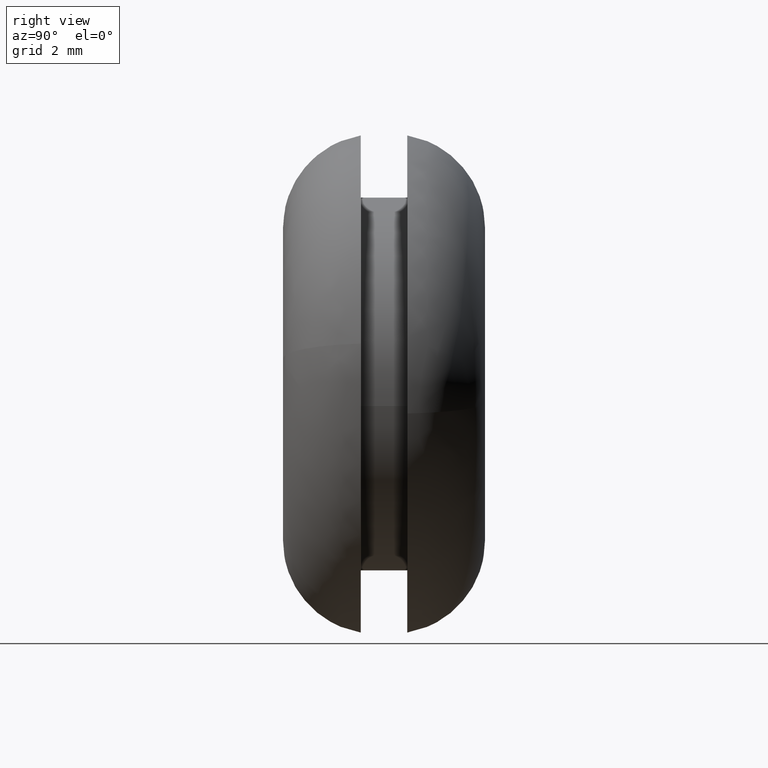
[diagram: clean part render]
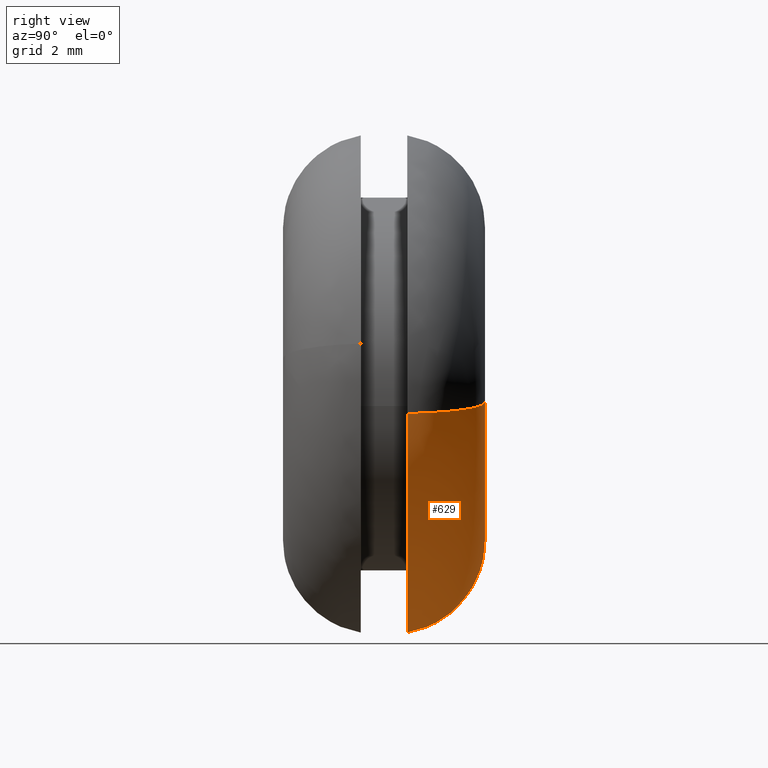
[diagram: same view with one face highlighted and labeled with its STEP entity id]
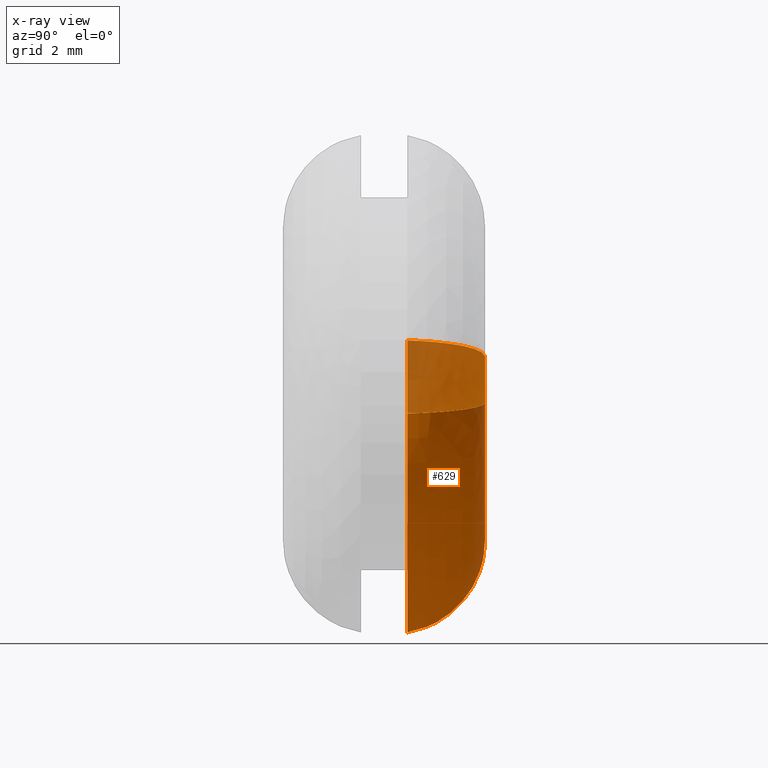
[diagram: x-ray of the same camera — body ghosted, the highlighted face saturated]
A machine part, right view. The second image highlights one B-rep face of the part: STEP entity #629.
The next image is the same camera in x-ray: the body ghosted, the highlighted face saturated — about 25% of this face is hidden behind the body in this view.
In plain terms, the highlighted face is a freeform B-spline surface patch.
Its self-contained STEP definition (entity closure, byte-faithful):
#439=CARTESIAN_POINT('',(7.943702172782295,4.000001249126272,-0.947412622172427));
#440=VERTEX_POINT('',#439);
#458=CARTESIAN_POINT('',(5.006478474712188,6.500000000000000,-0.597104617303462));
#459=VERTEX_POINT('',#458);
#460=CARTESIAN_POINT('',(5.006478474712188,6.500000000000000,-0.597104617303462));
#461=CARTESIAN_POINT('',(7.524097718139170,6.499999999972721,-0.897369945380144));
#462=CARTESIAN_POINT('',(7.943702172782297,4.000001249126272,-0.947412622172427));
#470=(BOUNDED_CURVE()B_SPLINE_CURVE(2,(#460,#461,#462),.UNSPECIFIED.,.F.,.U.)B_SPLINE_CURVE_WITH_KNOTS((3,3),(-1.711130095560332,-0.293356810133895),.UNSPECIFIED.)CURVE()GEOMETRIC_REPRESENTATION_ITEM()RATIONAL_B_SPLINE_CURVE((0.875824093680171,0.668421898418173,0.874515480675706))REPRESENTATION_ITEM(''));
#471=EDGE_CURVE('',#459,#440,#470,.T.);
#490=CARTESIAN_POINT('',(-4.964133992170910,6.500000000000000,0.882459262458416));
#491=VERTEX_POINT('',#490);
#505=CARTESIAN_POINT('',(-7.876514917801297,4.000000767646103,1.400181751897144));
#506=VERTEX_POINT('',#505);
#507=CARTESIAN_POINT('',(-4.964133992170910,6.500000000000000,0.882459262458416));
#508=CARTESIAN_POINT('',(-7.460459782287119,6.499999999911852,1.326222255441417));
#509=CARTESIAN_POINT('',(-7.876514917801297,4.000000767646104,1.400181751897144));
#517=(BOUNDED_CURVE()B_SPLINE_CURVE(2,(#507,#508,#509),.UNSPECIFIED.,.F.,.U.)B_SPLINE_CURVE_WITH_KNOTS((3,3),(-1.711130095533902,-0.293356631512929),.UNSPECIFIED.)CURVE()GEOMETRIC_REPRESENTATION_ITEM()RATIONAL_B_SPLINE_CURVE((0.895978410521985,0.683803484079920,0.894639737068132))REPRESENTATION_ITEM(''));
#518=EDGE_CURVE('',#491,#506,#517,.T.);
#536=CARTESIAN_POINT('',(-4.776222293862730,6.493922733300471,0.849054761482396));
#537=CARTESIAN_POINT('',(-5.625277055345126,6.493922733300472,-3.927167532380336));
#538=CARTESIAN_POINT('',(-0.849054761482396,6.493922733300471,-4.776222293862730));
#539=CARTESIAN_POINT('',(3.927167532380334,6.493922733300472,-5.625277055345126));
#540=CARTESIAN_POINT('',(4.776222293862730,6.493922733300471,-0.849054761482396));
#541=CARTESIAN_POINT('',(4.800521852909155,6.493922733300471,-0.712361463342321));
#542=CARTESIAN_POINT('',(4.816963842059988,6.493922733300469,-0.574502160721765));
#543=CARTESIAN_POINT('',(-7.608249808882023,6.677290290301738,1.352495828152605));
#544=CARTESIAN_POINT('',(-8.960745637034624,6.677290290301737,-6.255753980729417));
#545=CARTESIAN_POINT('',(-1.352495828152605,6.677290290301738,-7.608249808882023));
#546=CARTESIAN_POINT('',(6.255753980729415,6.677290290301737,-8.960745637034625));
#547=CARTESIAN_POINT('',(7.608249808882023,6.677290290301738,-1.352495828152606));
#548=CARTESIAN_POINT('',(7.646957621059949,6.677290290301739,-1.134751197466962));
#549=CARTESIAN_POINT('',(7.673148772375331,6.677290290301736,-0.915149188120954));
#550=CARTESIAN_POINT('',(-7.901963619517539,3.810504205938125,1.404708454385196));
#551=CARTESIAN_POINT('',(-9.306672073902735,3.810504205938126,-6.497255165132343));
#552=CARTESIAN_POINT('',(-1.404708454385197,3.810504205938125,-7.901963619517539));
#553=CARTESIAN_POINT('',(6.497255165132343,3.810504205938126,-9.306672073902739));
#554=CARTESIAN_POINT('',(7.901963619517538,3.810504205938125,-1.404708454385197));
#555=CARTESIAN_POINT('',(7.942165733184212,3.810504205938126,-1.178557868738737));
#556=CARTESIAN_POINT('',(7.969367984693595,3.810504205938126,-0.950478200981338));
#564=(BOUNDED_SURFACE()B_SPLINE_SURFACE(2,2,((#536,#543,#550),(#537,#544,#551),(#538,#545,#552),(#539,#546,#553),(#540,#547,#554),(#541,#548,#555),(#542,#549,#556)),.UNSPECIFIED.,.F.,.F.,.U.)B_SPLINE_SURFACE_WITH_KNOTS((3,2,2,3),(3,3),(0.0,13.297660237299061,26.595320474598129,27.127226376824609),(0.0,4.830461721013431),.UNSPECIFIED.)GEOMETRIC_REPRESENTATION_ITEM()RATIONAL_B_SPLINE_SURFACE(((0.918230120723227,0.661618598612188,0.916757797319628),(0.649286745053136,0.467834997637819,0.648245655190352),(0.918230120723227,0.661618598612188,0.916757797319628),(0.649286745053136,0.467834997637819,0.648245655190352),(0.918230120723227,0.661618598612188,0.916757797319628),(0.907472395955798,0.653867261965471,0.906017321877383),(0.897575288349015,0.646736031659112,0.896136083651083)))REPRESENTATION_ITEM('')SURFACE());
#565=CARTESIAN_POINT('',(0.0,3.999999988287755,-7.999999893529521));
#566=VERTEX_POINT('',#565);
#567=CARTESIAN_POINT('',(0.0,3.999999988287755,-7.999999893529521));
#568=CARTESIAN_POINT('',(7.102569261442119,4.000000618707014,-7.999999880909854));
#569=CARTESIAN_POINT('',(7.943702172782295,4.000001249126272,-0.947412622172427));
#577=(BOUNDED_CURVE()B_SPLINE_CURVE(2,(#567,#568,#569),.UNSPECIFIED.,.F.,.U.)B_SPLINE_CURVE_WITH_KNOTS((3,3),(0.0,0.229495701666636),.UNSPECIFIED.)CURVE()GEOMETRIC_REPRESENTATION_ITEM()RATIONAL_B_SPLINE_CURVE((1.0,0.731129060940029,0.955895920418741))REPRESENTATION_ITEM(''));
#578=EDGE_CURVE('',#566,#440,#577,.T.);
#579=ORIENTED_EDGE('',*,*,#578,.F.);
#580=CARTESIAN_POINT('',(-7.876514917801297,4.000000767646103,1.400181751897144));
#581=CARTESIAN_POINT('',(-7.999999893529521,3.999999988287756,0.705536075905622));
#582=CARTESIAN_POINT('',(-7.999999893529521,3.999999988287755,-3.061516E-016));
#583=CARTESIAN_POINT('',(-7.999999893529521,3.999999988287755,-7.999999893529521));
#584=CARTESIAN_POINT('',(0.0,3.999999988287755,-7.999999893529521));
#592=(BOUNDED_CURVE()B_SPLINE_CURVE(2,(#580,#581,#582,#583,#584),.UNSPECIFIED.,.F.,.U.)B_SPLINE_CURVE_WITH_KNOTS((3,2,3),(0.719918309591825,0.750000000000000,1.0),.UNSPECIFIED.)CURVE()GEOMETRIC_REPRESENTATION_ITEM()RATIONAL_B_SPLINE_CURVE((0.937995541207963,0.964757107476000,1.0,0.707106781186547,1.0))REPRESENTATION_ITEM(''));
#593=EDGE_CURVE('',#506,#566,#592,.T.);
#594=ORIENTED_EDGE('',*,*,#593,.F.);
#595=ORIENTED_EDGE('',*,*,#518,.F.);
#596=CARTESIAN_POINT('',(0.0,6.500000000000000,-5.041960000000000));
#597=VERTEX_POINT('',#596);
#598=CARTESIAN_POINT('',(-4.964133992170910,6.500000000000000,0.882459262458416));
#599=CARTESIAN_POINT('',(-5.041960000000000,6.500000000000000,0.444661453959631));
#600=CARTESIAN_POINT('',(-5.041960000000000,6.500000000000000,-3.061516E-016));
#601=CARTESIAN_POINT('',(-5.041960000000000,6.500000000000001,-5.041960000000000));
#602=CARTESIAN_POINT('',(0.0,6.500000000000000,-5.041960000000000));
#610=(BOUNDED_CURVE()B_SPLINE_CURVE(2,(#598,#599,#600,#601,#602),.UNSPECIFIED.,.F.,.U.)B_SPLINE_CURVE_WITH_KNOTS((3,2,3),(0.719918253209072,0.750000000000000,1.0),.UNSPECIFIED.)CURVE()GEOMETRIC_REPRESENTATION_ITEM()RATIONAL_B_SPLINE_CURVE((0.937995440888446,0.964757041419496,1.0,0.707106781186548,1.0))REPRESENTATION_ITEM(''));
#611=EDGE_CURVE('',#491,#597,#610,.T.);
#612=ORIENTED_EDGE('',*,*,#611,.T.);
#613=CARTESIAN_POINT('',(0.0,6.500000000000000,-5.041960000000000));
#614=CARTESIAN_POINT('',(4.476356616450283,6.500000000000001,-5.041959999999999));
#615=CARTESIAN_POINT('',(5.006478474712187,6.500000000000000,-0.597104617303462));
#623=(BOUNDED_CURVE()B_SPLINE_CURVE(2,(#613,#614,#615),.UNSPECIFIED.,.F.,.U.)B_SPLINE_CURVE_WITH_KNOTS((3,3),(0.0,0.229495616428847),.UNSPECIFIED.)CURVE()GEOMETRIC_REPRESENTATION_ITEM()RATIONAL_B_SPLINE_CURVE((1.0,0.731129160802311,0.955895753455941))REPRESENTATION_ITEM(''));
#624=EDGE_CURVE('',#597,#459,#623,.T.);
#625=ORIENTED_EDGE('',*,*,#624,.T.);
#626=ORIENTED_EDGE('',*,*,#471,.T.);
#627=EDGE_LOOP('',(#579,#594,#595,#612,#625,#626));
#628=FACE_OUTER_BOUND('',#627,.T.);
#629=ADVANCED_FACE('',(#628),#564,.T.);